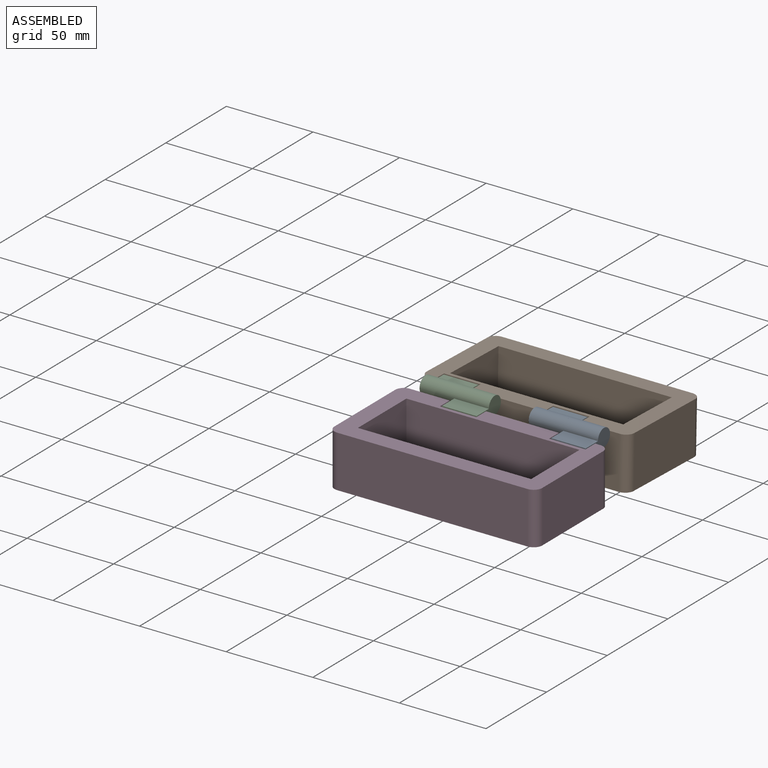
[diagram: assembled view]
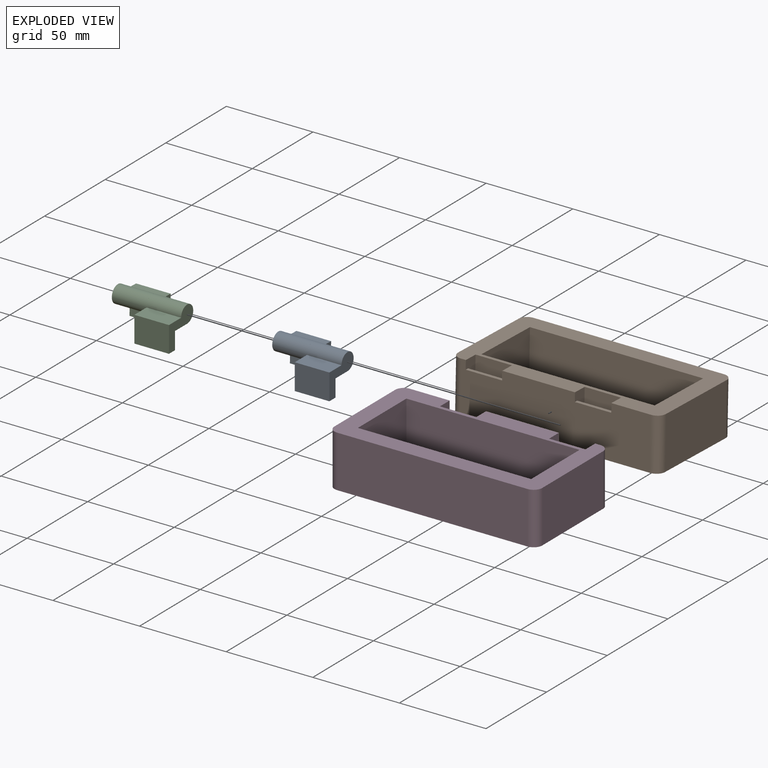
[diagram: exploded view]
GUIDED TOUR — MATED ASSEMBLY WITH SUBASSEMBLIES (Onshape document 91b984b66a4623b8f8c38021, AutoMate assembly 91b984b66a4623b8f8c38021_06b441044ad8aea5c53c0158_808ac4ae76448eb76a1bae72_default)

This assembly has 6 component occurrences arranged in 4 top-level units: 2 individual components plus 2 subassemblies (S0, S1). The tour has two levels: first the top level, where each subassembly is treated as one rigid unit; then each subassembly is toured internally in its own section (nesting deeper than one subassembly level is flattened into its subassembly's section).

Components are labeled P0..P5 across the whole record; subassembly units are labeled S0..S1. A mate is a constraint between two units; its type names the relative motion it leaves free:
  FASTENED — locks the two components together rigidly (no relative motion),
  REVOLUTE — leaves rotation about the listed axis free (a hinge).
Axis/direction vectors are unit vectors and 'through' points are millimeter coordinates, both in the assembly's world frame.

TOP-LEVEL MATES (between units; each subassembly's internal mates are listed in its own section)
  1. FASTENED "Fastened 4": S1 <-> P1, direction (1.000, 0.000, 0.000) through (-41.50, 47.86, 24.72) mm
  2. FASTENED "Fastened 3": P1 <-> S0, direction (-1.000, 0.000, 0.000) through (21.50, 47.86, 24.72) mm
  3. FASTENED "Fastened 1": P4 <-> S0, direction (1.000, 0.000, 0.000) through (41.50, 28.00, 25.00) mm
  4. FASTENED "Fastened 2": S1 <-> P4, direction (1.000, 0.000, 0.000) through (-21.50, 28.00, 25.00) mm

TOP-LEVEL ASSEMBLY ORDER
  1. P4 — the base component [order verified]
  2. P1 [order verified]
  3. S0 [order verified]
  4. S1 [order verified]
Order-tag legend:
  [order verified] — this step's position reverses a verified removal order: the component was checked to insert without passing through the ones already placed.

Of the 6 component occurrences, 2 carry the full construction recipe — the FeatureScript program that regenerates the part's solid from scratch; the rest are supplied as boundary geometry only. Each toured unit is shown spotlighted twice — assembled, then exploded with a leader line back to its socket (green = recipe-attached component, orange = geometry-only, blue = subassembly unit; the rest desaturated gray).
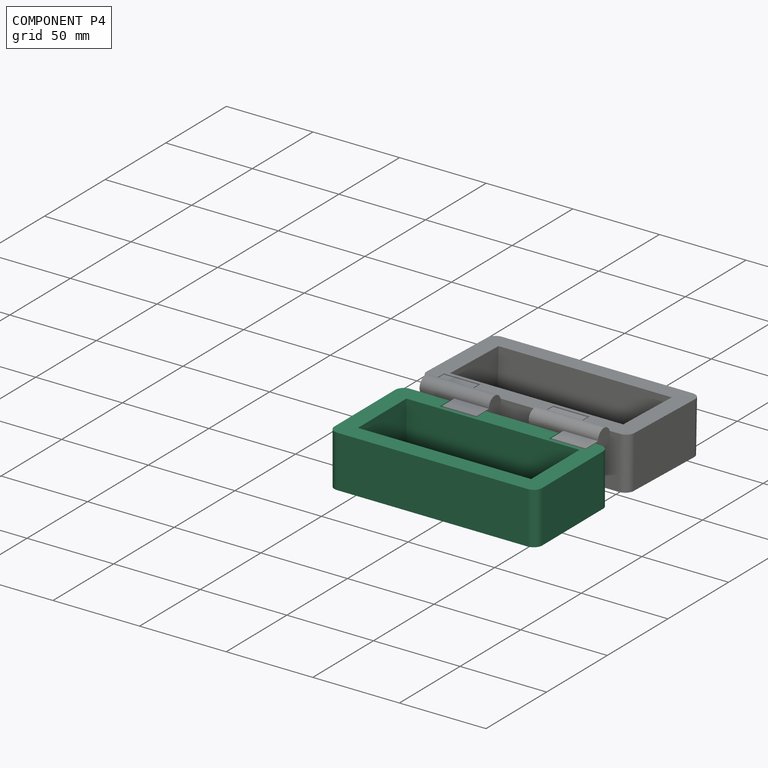
[diagram: component P4 — assembled]
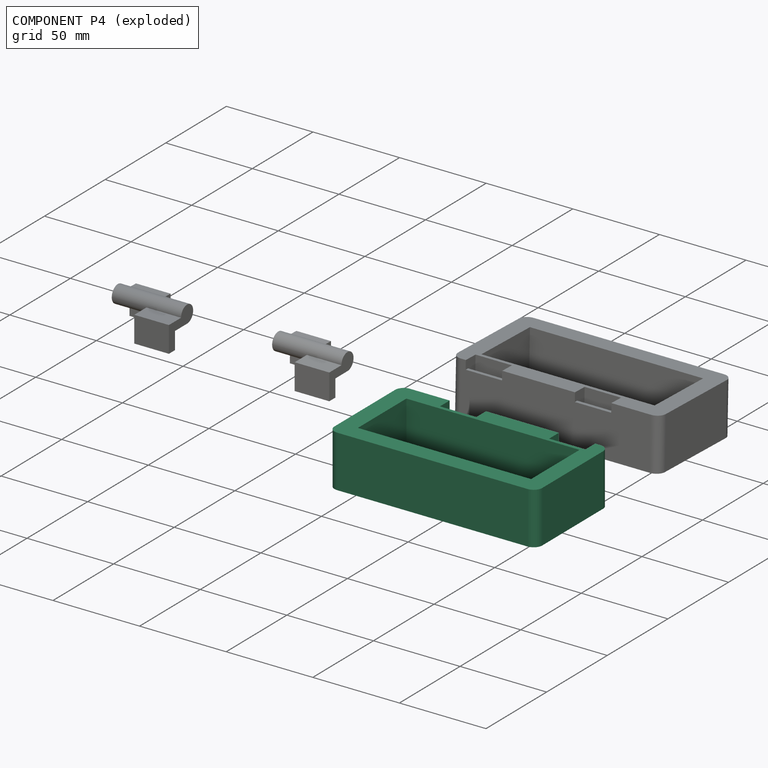
[diagram: component P4 — exploded]
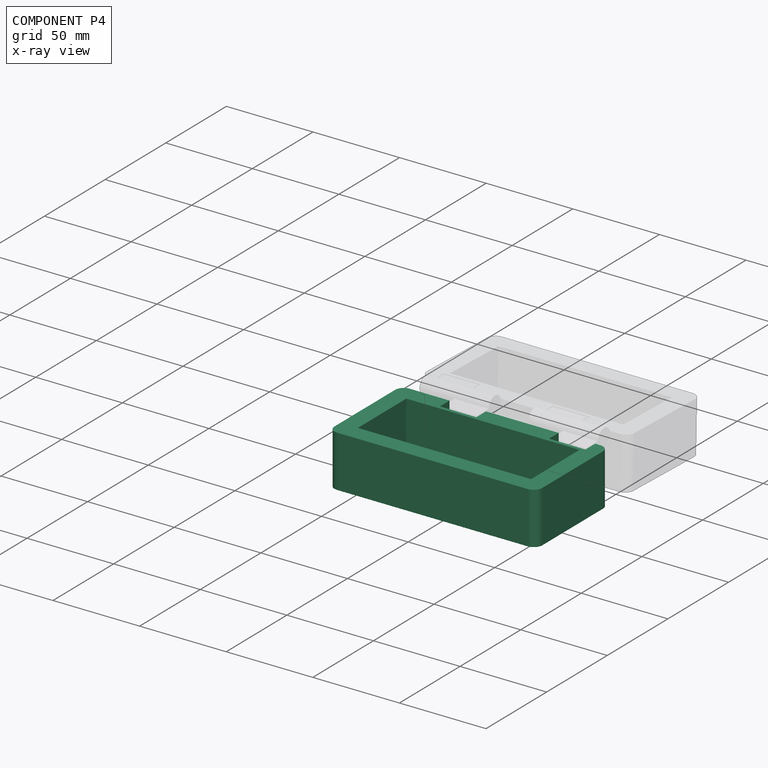
[diagram: component P4 — x-ray view]
COMPONENT P4 — same part as P1 (CADFS 00982841); its construction recipe is shown at P1.
Held by: FASTENED mate "Fastened 1" to P0; FASTENED mate "Fastened 2" to P3.
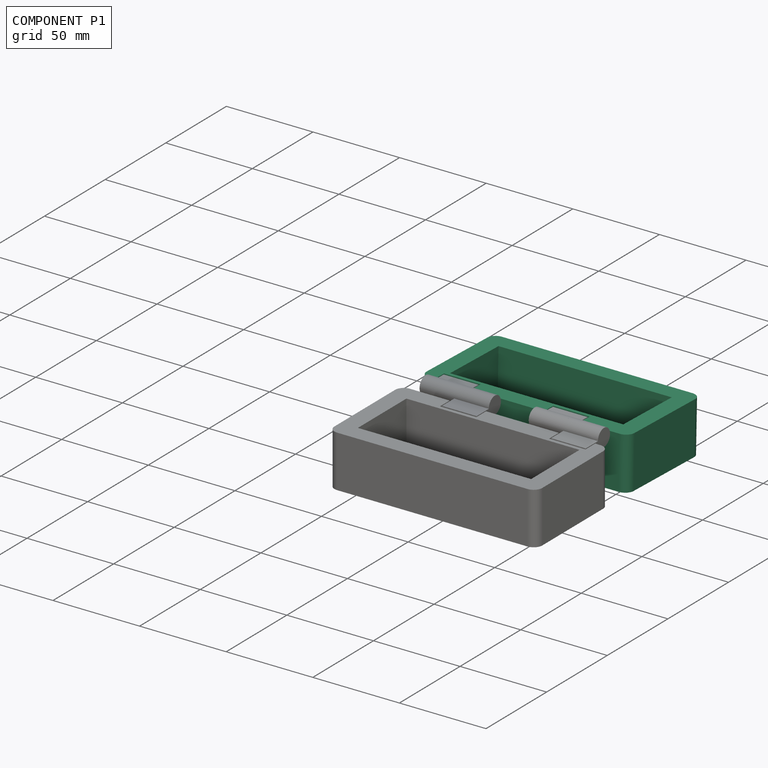
[diagram: component P1 — assembled]
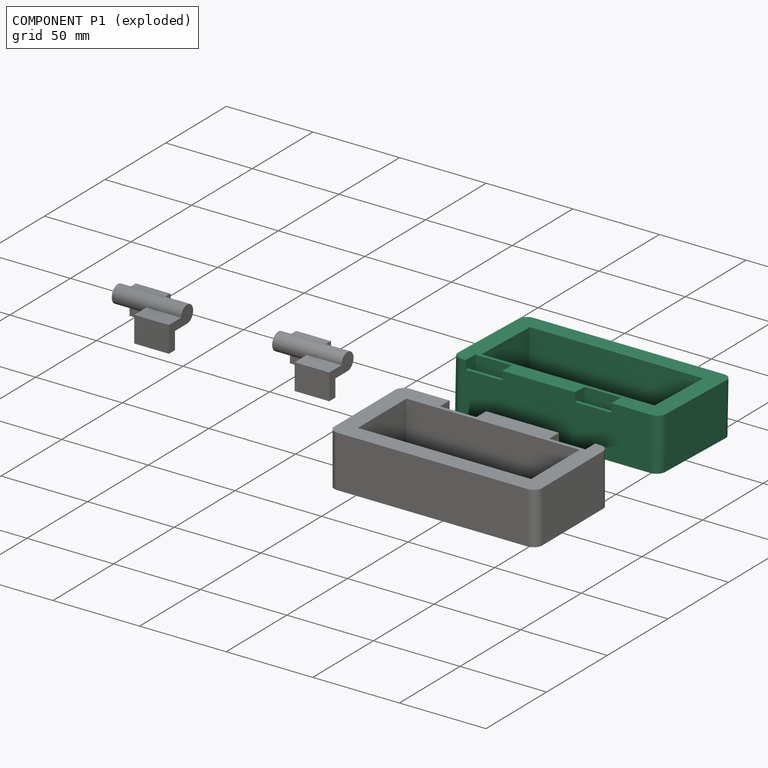
[diagram: component P1 — exploded]
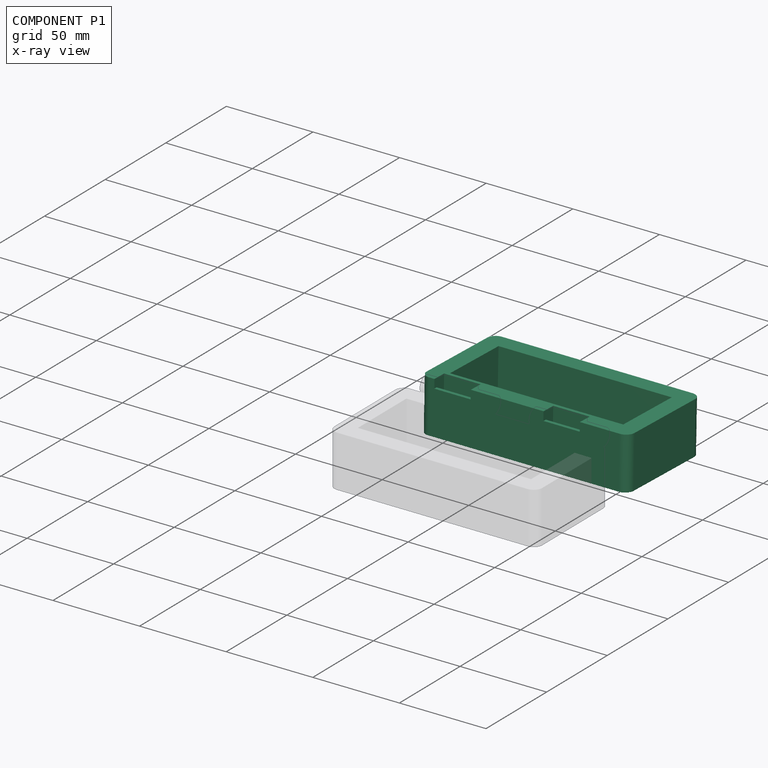
[diagram: component P1 — x-ray view]
COMPONENT P1 — recipe-attached (CADFS 00982841, mesh-verified: the recipe's output STEP matches this component's geometry to below the mesh-comparison resolution (tessellation chordal tolerance ~0.206 mm)).
Held by: FASTENED mate "Fastened 4" to P3; FASTENED mate "Fastened 3" to P0.
Construction recipe (FeatureScript — the CAD program that rebuilds this solid; sketch coordinates are in the units given by the * unit suffixes, e.g. mm):

FeatureScript 1511;
import(path : "onshape/std/geometry.fs", version : "1511.0");
import(path : "onshape/std/common.fs", version : "1511.0");
const mm = millimeter;
const VERTEX = EntityType.VERTEX;
const EDGE = EntityType.EDGE;
const FACE = EntityType.FACE;
const BODY = EntityType.BODY;
function v(x, y){return vector(x, y);}
function OD(order){return orderDisambiguation(order);}
function OSD(set){return originalSetDisambiguation(set);}
function TD(topology){return topologyDisambiguation(topology);}
function TDD(query){return trueDependencyDisambiguation(query);}
function sQuery(a, b, c) {return sketchEntityQuery(a, b, c);}

annotation { "Feature Type Name" : "Feature", "Feature Type Description" : "" }
export const myFeature = defineFeature(function(context is Context, id is Id, definition is map)
    precondition{}
    {
        {
            var Q0;
            Q0=qCreatedBy(makeId("Top.planeOp"),FACE);
            var sketch = newSketch(context, id + "F0", { "sketchPlane" : qUnion([Q0])});
            skLineSegment(sketch, "E0.bottom", {"start": v(0, 0) * mm, "end": v(120, 0) * mm});
            skLineSegment(sketch, "E0.top", {"start": v(0, 60) * mm, "end": v(120, 60) * mm});
            skLineSegment(sketch, "E0.left", {"start": v(0, 0) * mm, "end": v(0, 60) * mm});
            skLineSegment(sketch, "E0.right", {"start": v(120, 0) * mm, "end": v(120, 60) * mm});
            skLineSegment(sketch, "E1.bottom", {"start": v(10, 10) * mm, "end": v(110, 10) * mm});
            skLineSegment(sketch, "E1.top", {"start": v(10, 50) * mm, "end": v(110, 50) * mm});
            skLineSegment(sketch, "E1.left", {"start": v(10, 10) * mm, "end": v(10, 50) * mm});
            skLineSegment(sketch, "E1.right", {"start": v(110, 10) * mm, "end": v(110, 50) * mm});
            skLineSegment(sketch, "E2.bottom", {"start": v(28, 58) * mm, "end": v(49, 58) * mm});
            skLineSegment(sketch, "E2.top", {"start": v(28, 52) * mm, "end": v(49, 52) * mm});
            skLineSegment(sketch, "E2.left", {"start": v(28, 58) * mm, "end": v(28, 52) * mm});
            skLineSegment(sketch, "E2.right", {"start": v(49, 58) * mm, "end": v(49, 52) * mm});
            skLineSegment(sketch, "E3.bottom", {"start": v(91, 58) * mm, "end": v(112, 58) * mm});
            skLineSegment(sketch, "E3.top", {"start": v(91, 52) * mm, "end": v(112, 52) * mm});
            skLineSegment(sketch, "E3.left", {"start": v(91, 58) * mm, "end": v(91, 52) * mm});
            skLineSegment(sketch, "E3.right", {"start": v(112, 58) * mm, "end": v(112, 52) * mm});
            skLineSegment(sketch, "E4", {"start": v(10, 10) * mm, "end": v(10, 0) * mm, "construction": true});
            skLineSegment(sketch, "E5", {"start": v(10, 10) * mm, "end": v(0, 10) * mm, "construction": true});
            skLineSegment(sketch, "E6", {"start": v(110, 10) * mm, "end": v(120, 10) * mm, "construction": true});
            skLineSegment(sketch, "E7", {"start": v(10, 50) * mm, "end": v(10, 60) * mm, "construction": true});
            skLineSegment(sketch, "E8", {"start": v(28, 52) * mm, "end": v(28, 50) * mm, "construction": true});
            skLineSegment(sketch, "E9", {"start": v(91, 58) * mm, "end": v(91, 60) * mm});
            skLineSegment(sketch, "E10", {"start": v(49, 52) * mm, "end": v(70, 52) * mm, "construction": true});
            skLineSegment(sketch, "E11", {"start": v(70, 52) * mm, "end": v(91, 52) * mm, "construction": true});
            skLineSegment(sketch, "E12", {"start": v(112, 58) * mm, "end": v(112, 60) * mm});
            skLineSegment(sketch, "E13", {"start": v(49, 58) * mm, "end": v(49, 60) * mm});
            skLineSegment(sketch, "E14", {"start": v(28, 58) * mm, "end": v(28, 60) * mm});
            skPoint(sketch, "E15", {"position": v(38.5, 58) * mm});
            skPoint(sketch, "E16", {"position": v(101.5, 58) * mm});
            skLineSegment(sketch, "E17", {"start": v(0, 75.53) * mm, "end": v(18.5, 75.53) * mm, "construction": true});
            skLineSegment(sketch, "E18", {"start": v(8, 64.83) * mm, "end": v(29, 64.83) * mm, "construction": true});
            skPoint(sketch, "E19", {"position": v(18.5, 64.83) * mm});
            skLineSegment(sketch, "E20", {"start": v(120, 75.53) * mm, "end": v(101.5, 75.53) * mm, "construction": true});
            skLineSegment(sketch, "E21", {"start": v(38.5, 68.5) * mm, "end": v(18.5, 68.5) * mm, "construction": true});
            skSolve(sketch);
        }
        {
            var Q0;
            Q0=makeQuery(id+"F0.imprint","IMPRINT",FACE,{"disambiguationData":[TD([[makeQuery(id+"F0.imprint","IMPRINT",EDGE,{"derivedFrom":sQuery(id+"F0.wireOp",EDGE,"E0.bottom")}),1.0]])]});
            extrude(context, id + "F1", {"entities" : qUnion([Q0]), "depth" : 30 * mm, "offsetDistance" : 25 * mm});
        }
        {
            var Q0;
            Q0=makeQuery(id+"F0.imprint","IMPRINT",FACE,{"disambiguationData":[TD([[makeQuery(id+"F0.imprint","IMPRINT",EDGE,{"derivedFrom":sQuery(id+"F0.wireOp",EDGE,"E1.bottom")}),1.0]])]});
            extrude(context, id + "F2", {"entities" : qUnion([Q0]), "operationType" : NewBodyOperationType.ADD, "depth" : 5 * mm, "offsetDistance" : 25 * mm});
        }
        {
            var Q0;
            Q0=makeQuery(id+"F0.imprint","IMPRINT",FACE,{"disambiguationData":[TD([[makeQuery(id+"F0.imprint","IMPRINT",EDGE,{"derivedFrom":sQuery(id+"F0.wireOp",EDGE,"E2.bottom")}),-1.0]])]});
            var Q1;
            Q1=makeQuery(id+"F0.imprint","IMPRINT",FACE,{"disambiguationData":[TD([[makeQuery(id+"F0.imprint","IMPRINT",EDGE,{"derivedFrom":sQuery(id+"F0.wireOp",EDGE,"E3.bottom")}),-1.0]])]});
            extrude(context, id + "F3", {"entities" : qUnion([Q0, Q1]), "operationType" : NewBodyOperationType.ADD, "depth" : 13 * mm, "offsetDistance" : 25 * mm});
        }
        {
            var Q0;
            Q0=makeQuery(id+"F0.imprint","IMPRINT",FACE,{"disambiguationData":[TD([[makeQuery(id+"F0.imprint","IMPRINT",EDGE,{"derivedFrom":sQuery(id+"F0.wireOp",EDGE,"E2.bottom")}),1.0]])]});
            var Q1;
            Q1=makeQuery(id+"F0.imprint","IMPRINT",FACE,{"disambiguationData":[TD([[makeQuery(id+"F0.imprint","IMPRINT",EDGE,{"derivedFrom":sQuery(id+"F0.wireOp",EDGE,"E3.bottom")}),1.0]])]});
            extrude(context, id + "F4", {"entities" : qUnion([Q0, Q1]), "operationType" : NewBodyOperationType.ADD, "depth" : 25 * mm, "offsetDistance" : 25 * mm});
        }
        {
            var Q0;
            Q0=makeQuery(id+"F1.opExtrude","SWEPT_EDGE",EDGE,{"disambiguationData":[OSD([sQuery(id+"F0.wireOp",EDGE,"E0.bottom"),sQuery(id+"F0.wireOp",EDGE,"E0.left")])]});
            var Q1;
            Q1=makeQuery(id+"F1.opExtrude","SWEPT_EDGE",EDGE,{"disambiguationData":[OSD([sQuery(id+"F0.wireOp",EDGE,"E0.bottom"),sQuery(id+"F0.wireOp",EDGE,"E0.right")])]});
            var Q2;
            Q2=makeQuery(id+"F1.opExtrude","SWEPT_EDGE",EDGE,{"disambiguationData":[OSD([sQuery(id+"F0.wireOp",EDGE,"E0.top"),sQuery(id+"F0.wireOp",EDGE,"E0.right")])]});
            var Q3;
            Q3=makeQuery(id+"F1.opExtrude","SWEPT_EDGE",EDGE,{"disambiguationData":[OSD([sQuery(id+"F0.wireOp",EDGE,"E0.top"),sQuery(id+"F0.wireOp",EDGE,"E0.left")])]});
            fillet(context, id + "F5", {"entities" : qUnion([Q0, Q1, Q2, Q3]), "radius" : 5 * mm, "tangentPropagation" : true, "allowEdgeOverflow" : false});
        }
    });
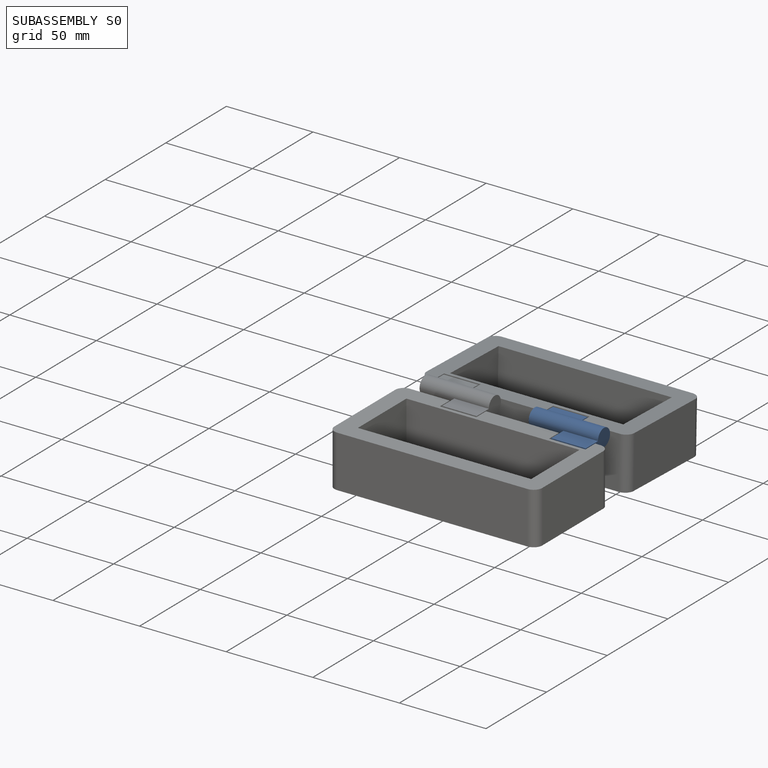
[diagram: subassembly S0 — assembled]
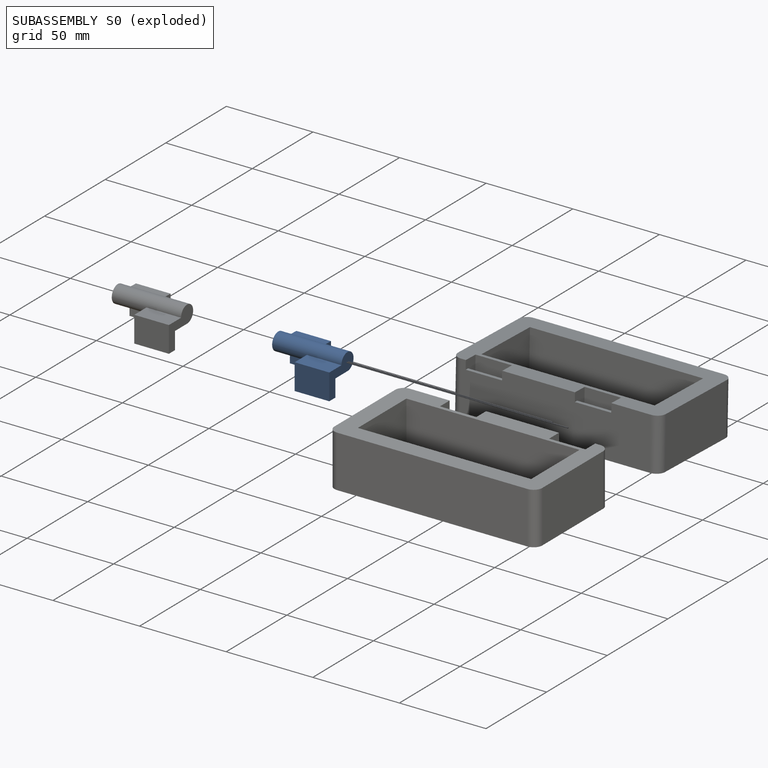
[diagram: subassembly S0 — exploded]
SUBASSEMBLY S0 — 2 components (P0, P2), of which 0 recipe-attached; toured below.
Held by: FASTENED mate "Fastened 3" to P1; FASTENED mate "Fastened 1" to P4.
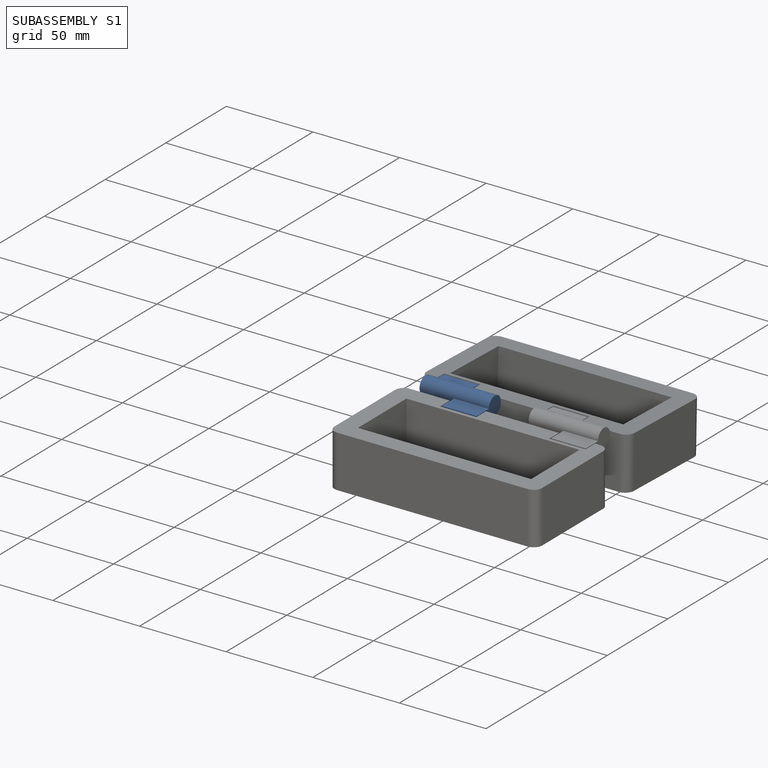
[diagram: subassembly S1 — assembled]
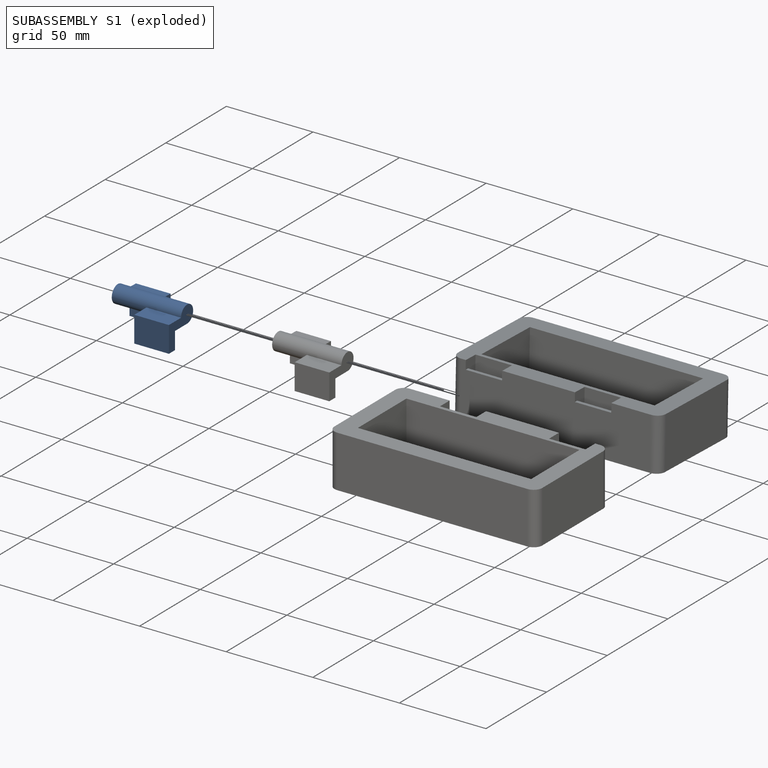
[diagram: subassembly S1 — exploded]
SUBASSEMBLY S1 — 2 components (P3, P5), of which 0 recipe-attached; toured below.
Held by: FASTENED mate "Fastened 4" to P1; FASTENED mate "Fastened 2" to P4.
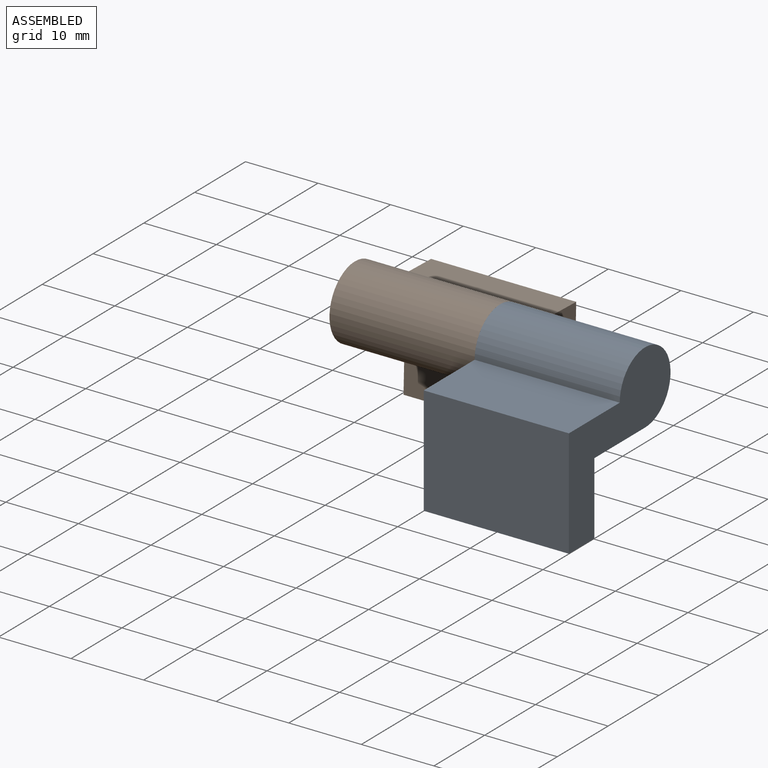
[diagram: subassembly S0 — assembled view]
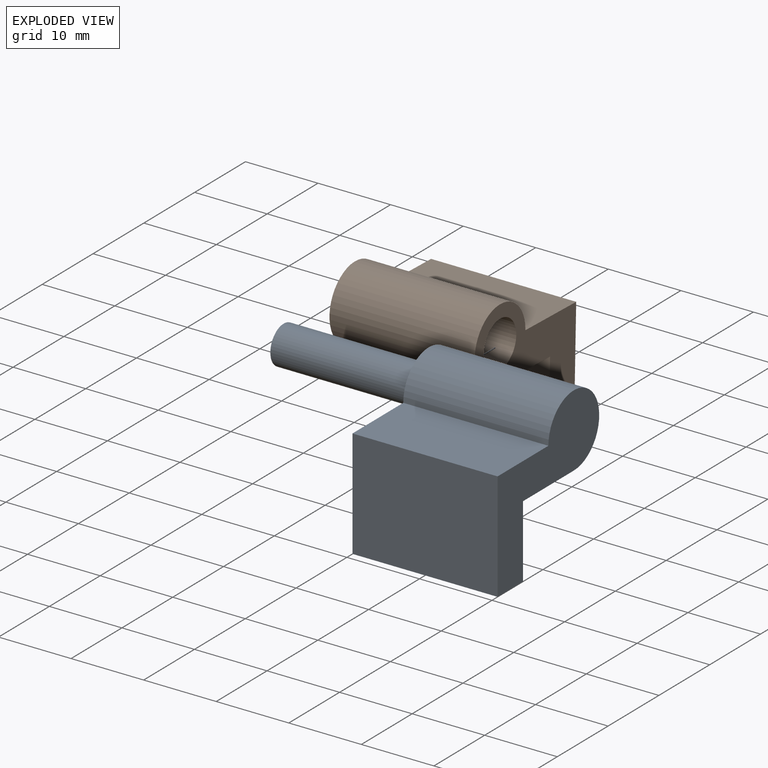
[diagram: subassembly S0 — exploded view]
SUBASSEMBLY S0 TOUR — 2 components, shown here in isolation at its own camera.

INTERNAL MATES
  1. REVOLUTE "Revolute 1": P0 <-> P2, axis (-1.000, 0.000, 0.000) through (11.50, 38.00, 30.00) mm
  2. REVOLUTE "Revolute 1": P0 <-> P2, axis (-1.000, 0.000, 0.000) through (11.50, 38.00, 30.00) mm

ASSEMBLY ORDER (within the subassembly)
  1. P2 — the base component [order verified]
  2. P0 [order verified]
Order-tag legend:
  [order verified] — this step's position reverses a verified removal order: the component was checked to insert without passing through the ones already placed.
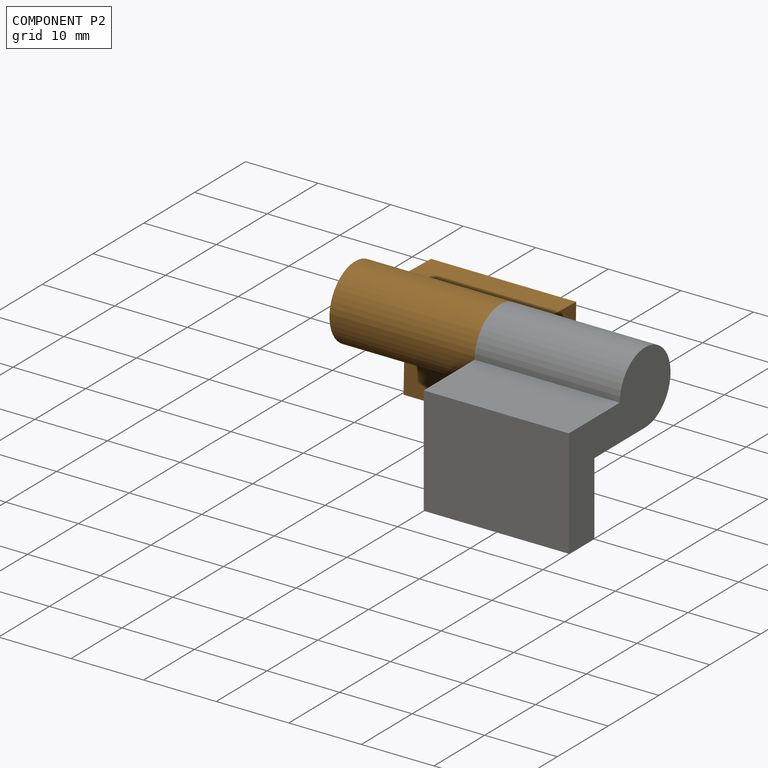
[diagram: component P2 — assembled]
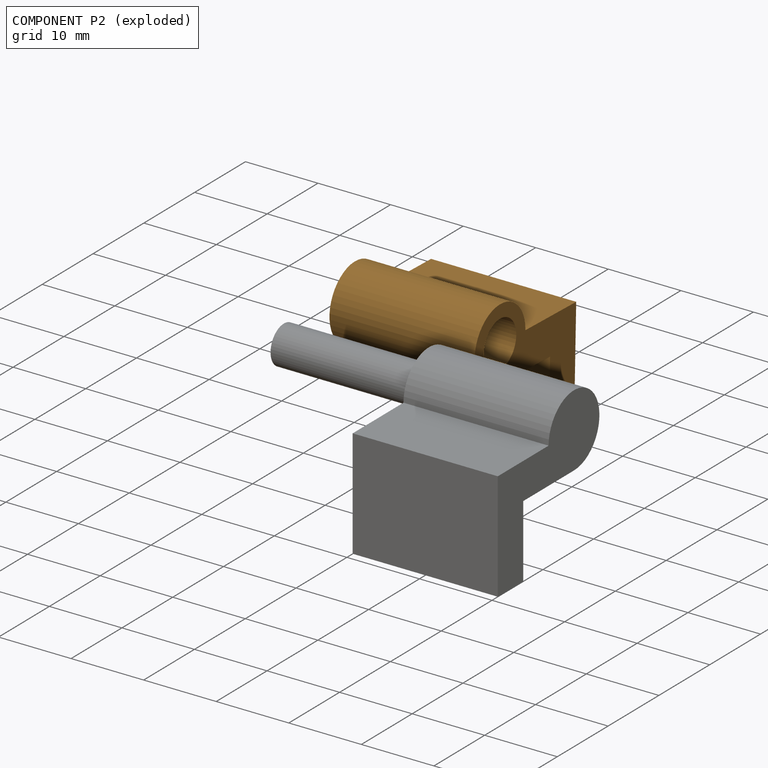
[diagram: component P2 — exploded]
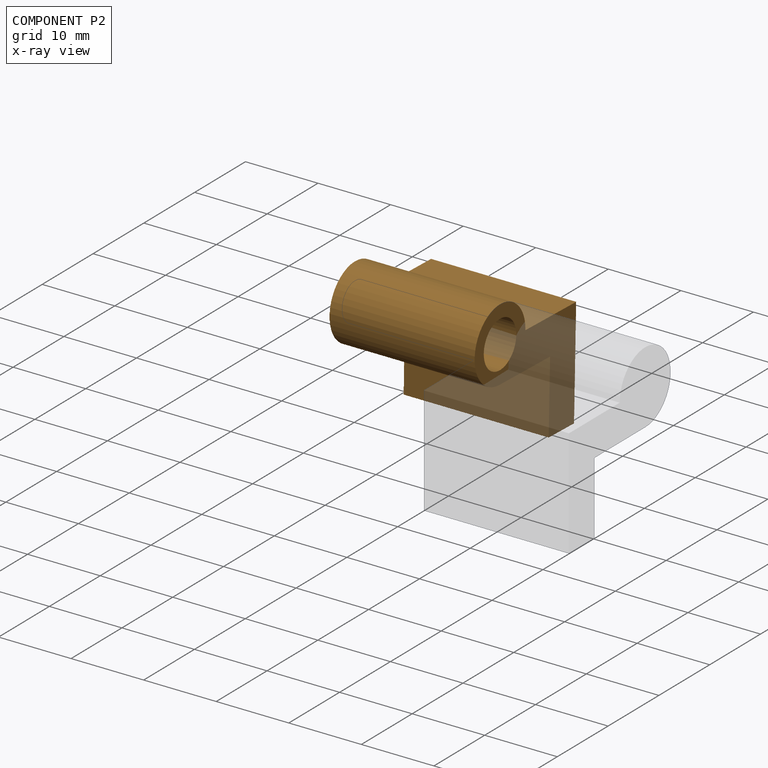
[diagram: component P2 — x-ray view]
COMPONENT P2 — geometry summary (no construction recipe available for this part):
  bounding box: 20.0 x 20.0 x 20.0 mm
  B-rep topology: 1 solid, 9 faces, 42 edges
  volume: 3035 mm^3 (38% of its bounding box)
  symmetry: mirror-symmetric across its z mid-plane
Held by: REVOLUTE mate "Revolute 1" to P0; REVOLUTE mate "Revolute 1" to P0.
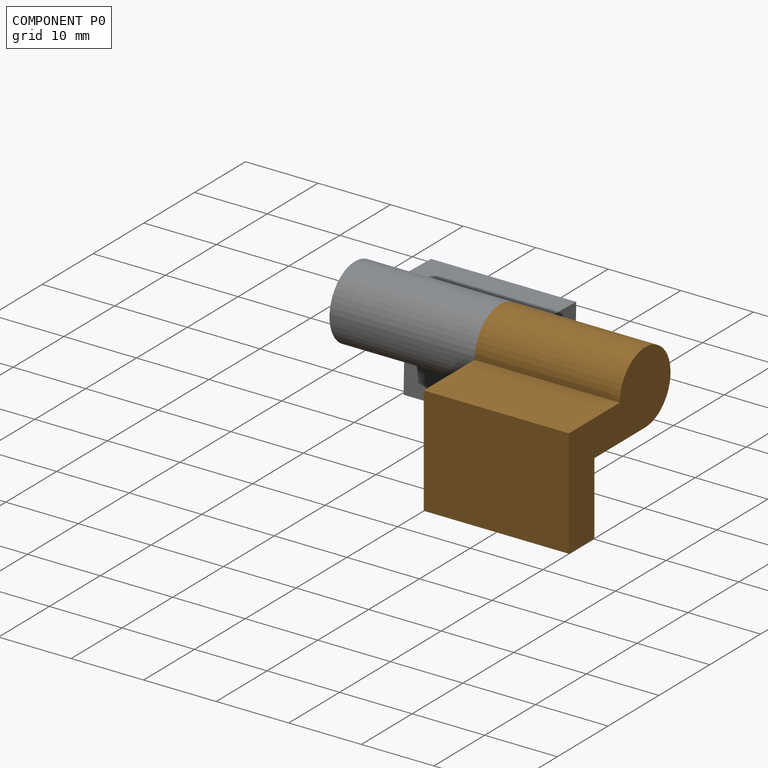
[diagram: component P0 — assembled]
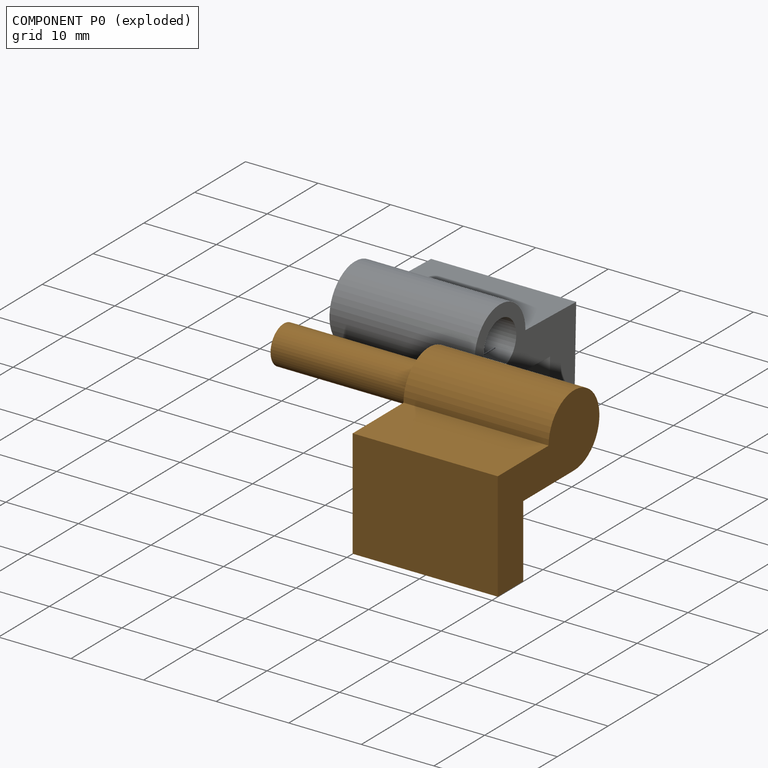
[diagram: component P0 — exploded]
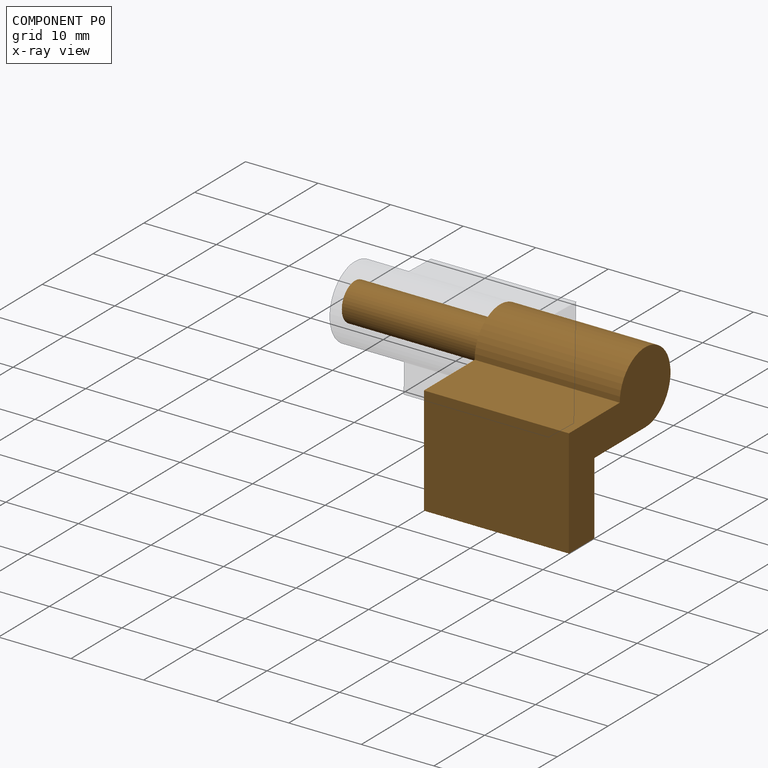
[diagram: component P0 — x-ray view]
COMPONENT P0 — geometry summary (no construction recipe available for this part):
  bounding box: 40.0 x 20.0 x 20.0 mm
  B-rep topology: 1 solid, 10 faces, 42 edges
  volume: 4103 mm^3 (26% of its bounding box)
Held by: REVOLUTE mate "Revolute 1" to P2; REVOLUTE mate "Revolute 1" to P2.
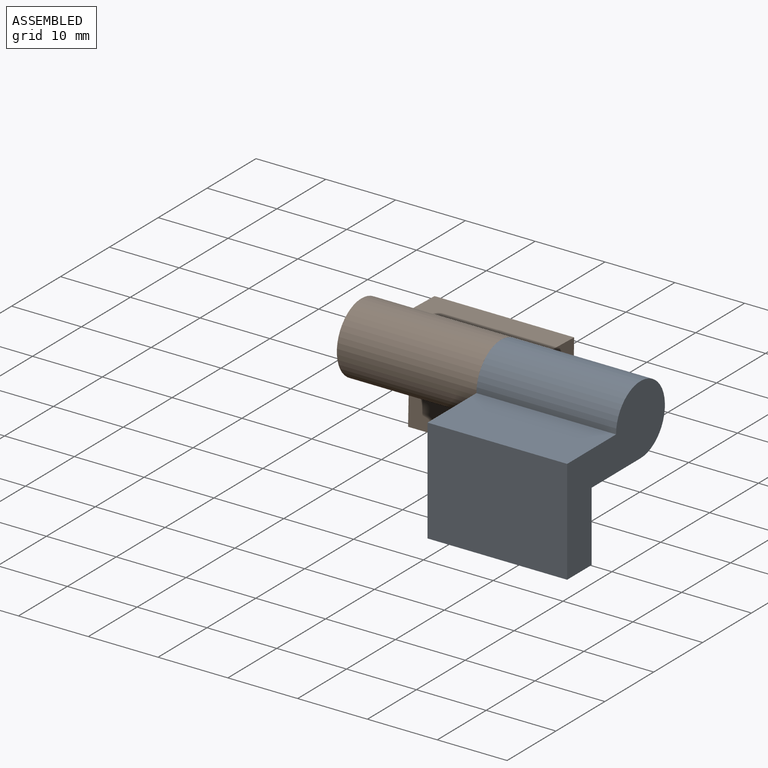
[diagram: subassembly S1 — assembled view]
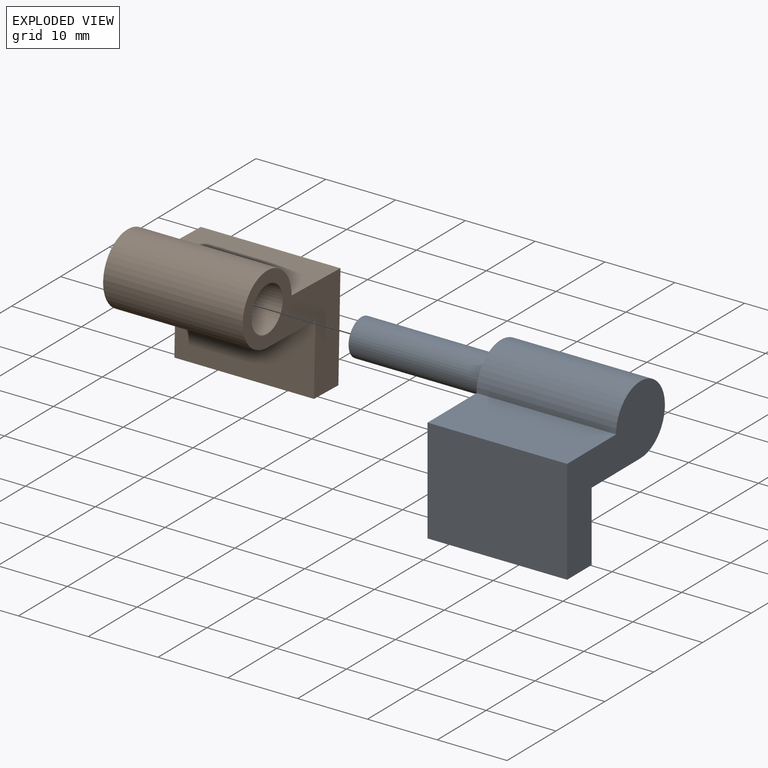
[diagram: subassembly S1 — exploded view]
SUBASSEMBLY S1 TOUR — 2 components, shown here in isolation at its own camera.

INTERNAL MATES
  1. REVOLUTE "Revolute 1": P3 <-> P5, axis (-1.000, 0.000, 0.000) through (-51.50, 38.00, 30.00) mm
  2. REVOLUTE "Revolute 1": P3 <-> P5, axis (-1.000, 0.000, 0.000) through (-51.50, 38.00, 30.00) mm

ASSEMBLY ORDER (within the subassembly)
  1. P3 — the base component [order verified]
  2. P5 [order verified]
Order-tag legend:
  [order verified] — this step's position reverses a verified removal order: the component was checked to insert without passing through the ones already placed.
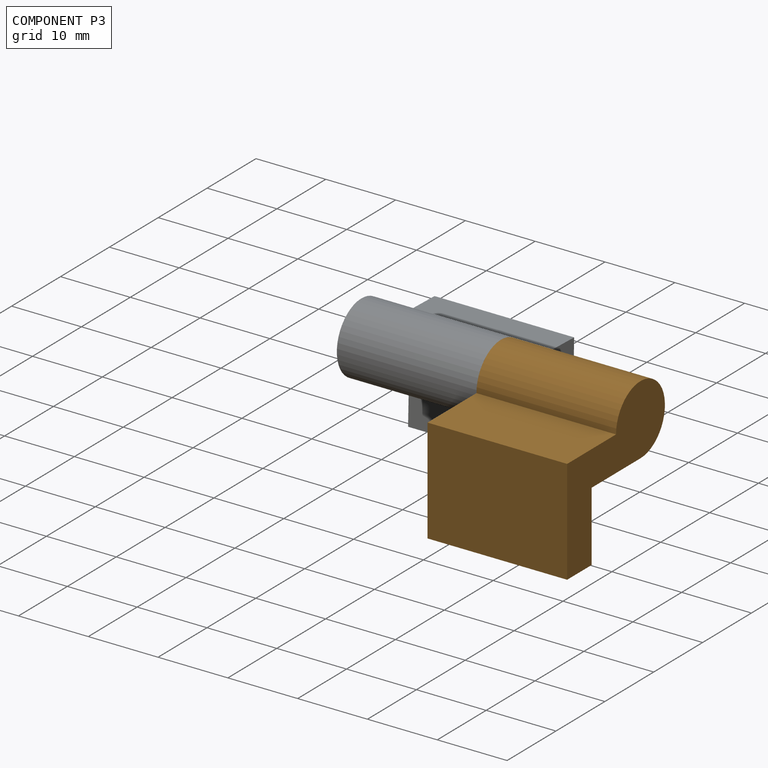
[diagram: component P3 — assembled]
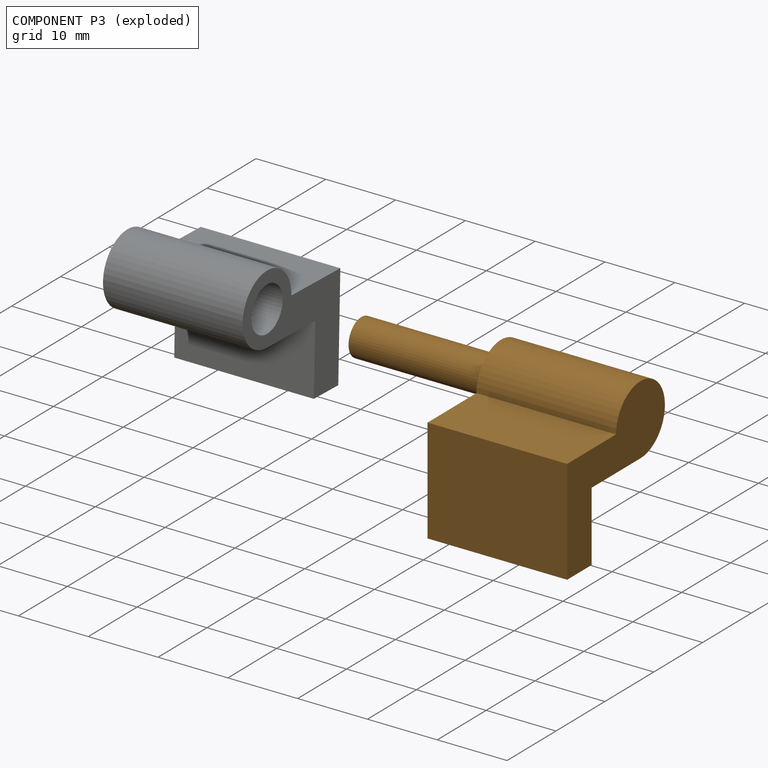
[diagram: component P3 — exploded]
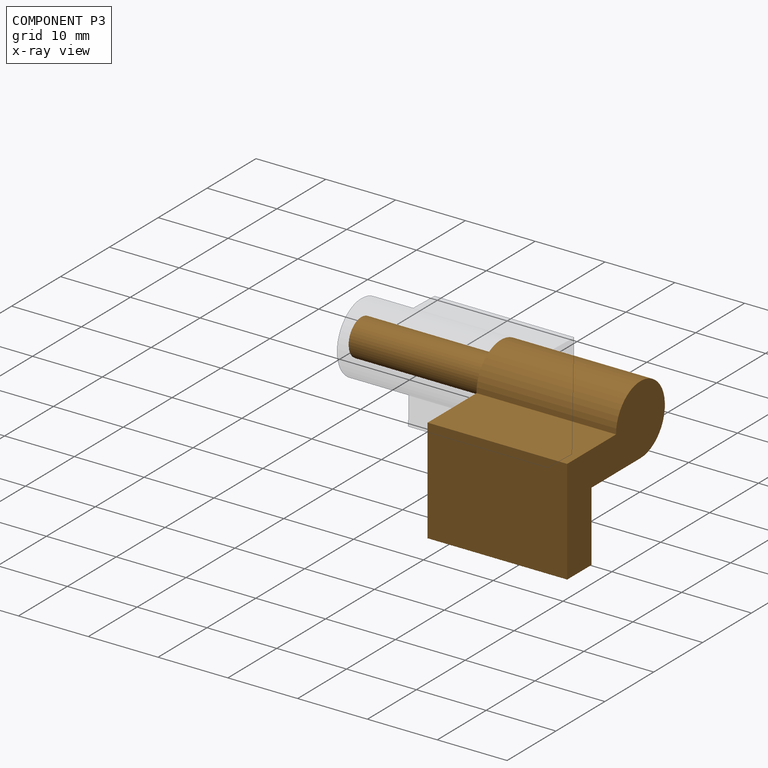
[diagram: component P3 — x-ray view]
COMPONENT P3 — geometry summary (no construction recipe available for this part):
  bounding box: 40.0 x 20.0 x 20.0 mm
  B-rep topology: 1 solid, 10 faces, 42 edges
  volume: 4103 mm^3 (26% of its bounding box)
Held by: REVOLUTE mate "Revolute 1" to P5; REVOLUTE mate "Revolute 1" to P5.
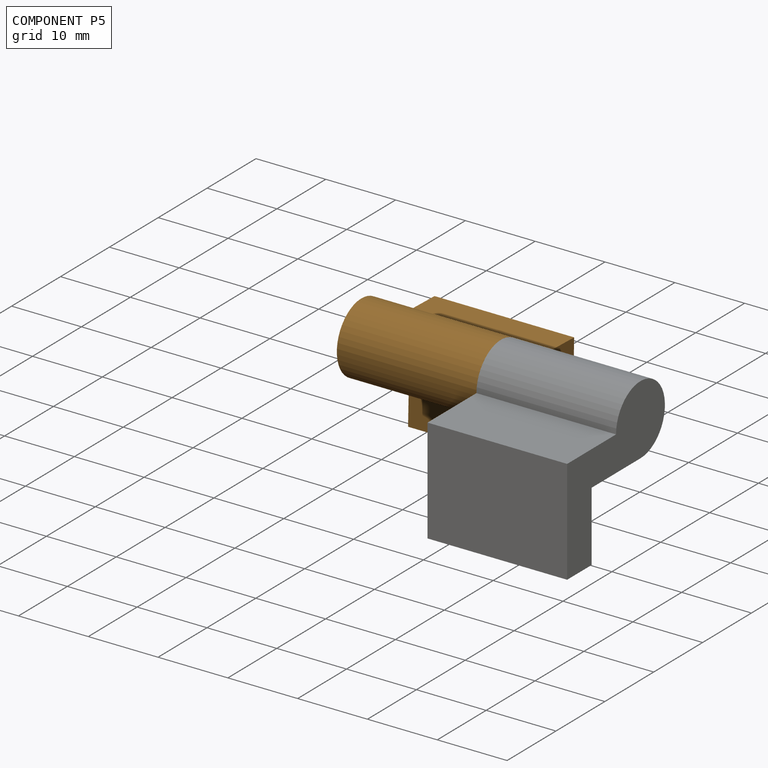
[diagram: component P5 — assembled]
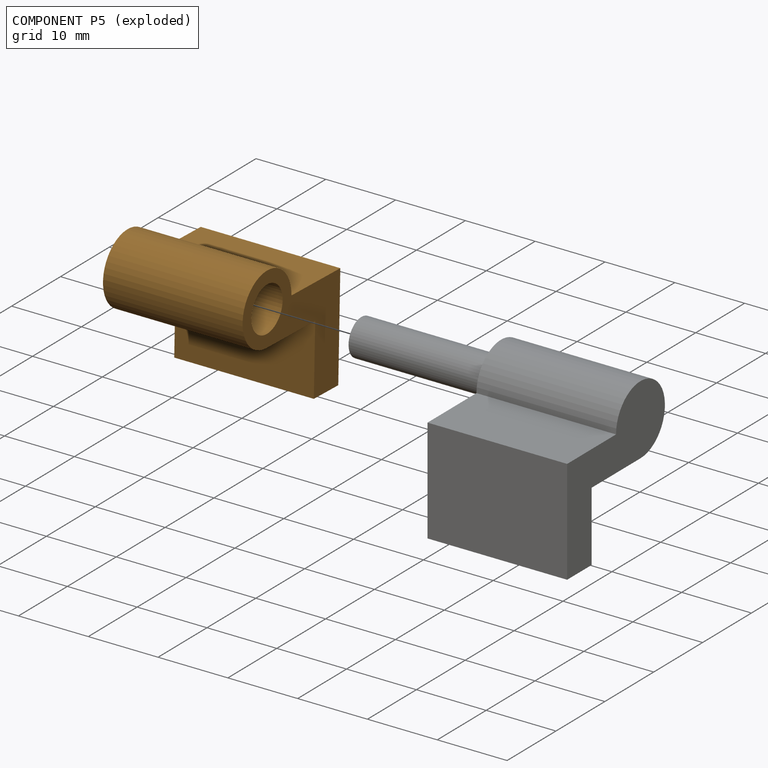
[diagram: component P5 — exploded]
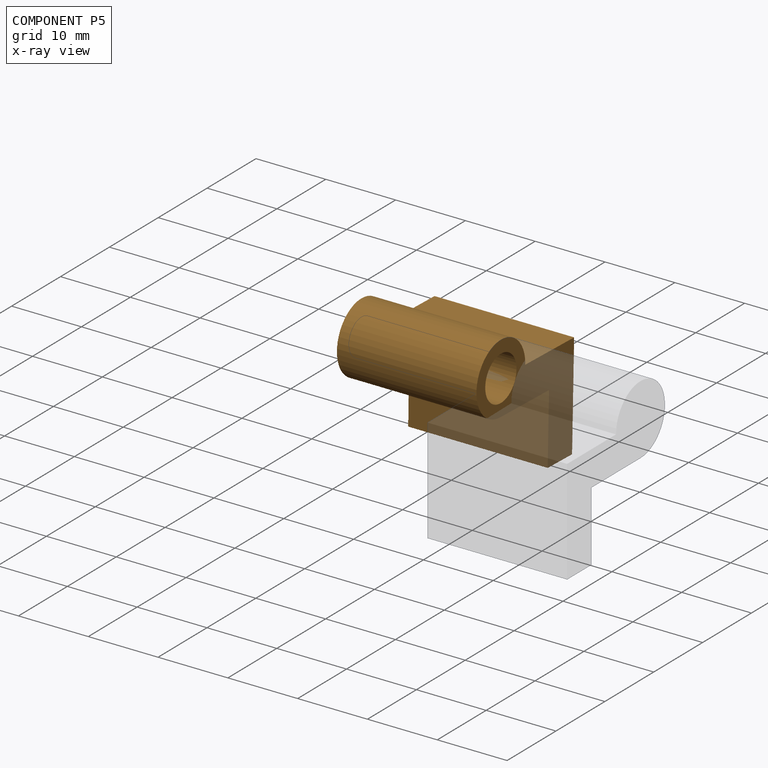
[diagram: component P5 — x-ray view]
COMPONENT P5 — geometry summary (no construction recipe available for this part):
  bounding box: 20.0 x 20.0 x 20.0 mm
  B-rep topology: 1 solid, 9 faces, 42 edges
  volume: 3035 mm^3 (38% of its bounding box)
  symmetry: mirror-symmetric across its z mid-plane
Held by: REVOLUTE mate "Revolute 1" to P3; REVOLUTE mate "Revolute 1" to P3.
PROVENANCE & LICENSES
Assembly (occurrences, transforms, mates, per-part STEP geometry): AutoMate dataset, Zenodo record 7776208, CC0.
Construction recipes: CADFS (HuggingFace VladPyatov/CADFS, CC-BY-4.0, layered over the ABC dataset), FeatureScript reconstruction programs keyed by ABC model id.
Join: ABC meta listings map ABC model id -> Onshape documentId; within a shared document, parts are matched by geometric signature (bounding-box dims + volume at 0.1% relative tolerance, exact B-rep face/solid counts).
Verification: 2 of this assembly's 6 components carry a recipe attachment, and every attachment is mesh-verified: the CADFS STEP and the AutoMate member STEP were compared as meshes in their shared local frame (symmetric sampled-point-to-mesh distance); worst across the 2 attachments: below the mesh-comparison resolution (tessellation chordal tolerance ~0.206 mm) on a 137 mm part.
Renders: orthographic iso camera (az 35 / el 25); the floor grid conveys scale (grid pitch printed in each image; no ruler). In the exploded view each component is displaced by its stored offset vector: the offsets alone carry the explosion direction (mate normal/axis signs are not orientation cues and do not encode it), and separation distances are assigned per mate-chain, not proportionally to assembly-order depth.
